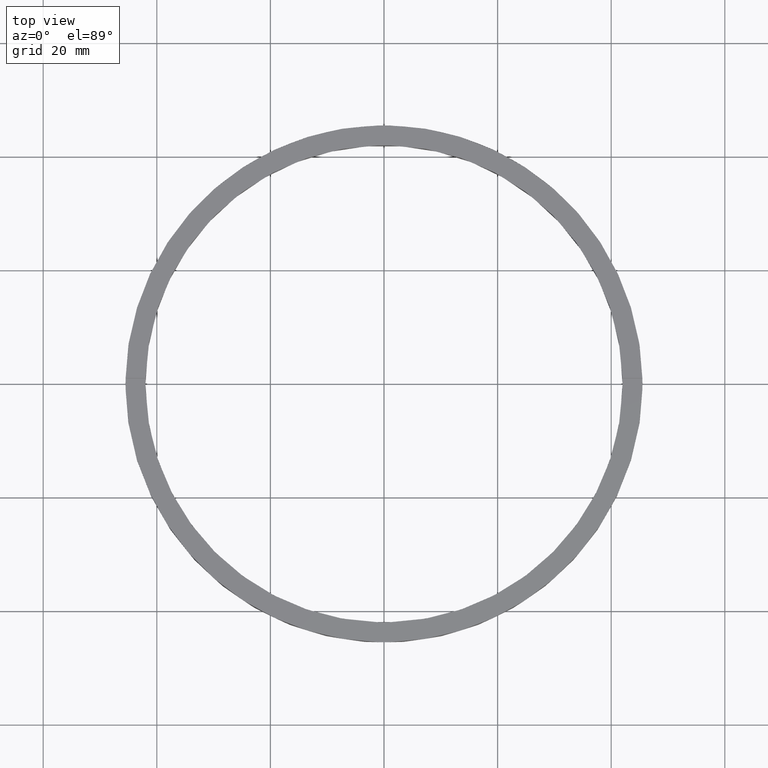
[diagram: clean part render]
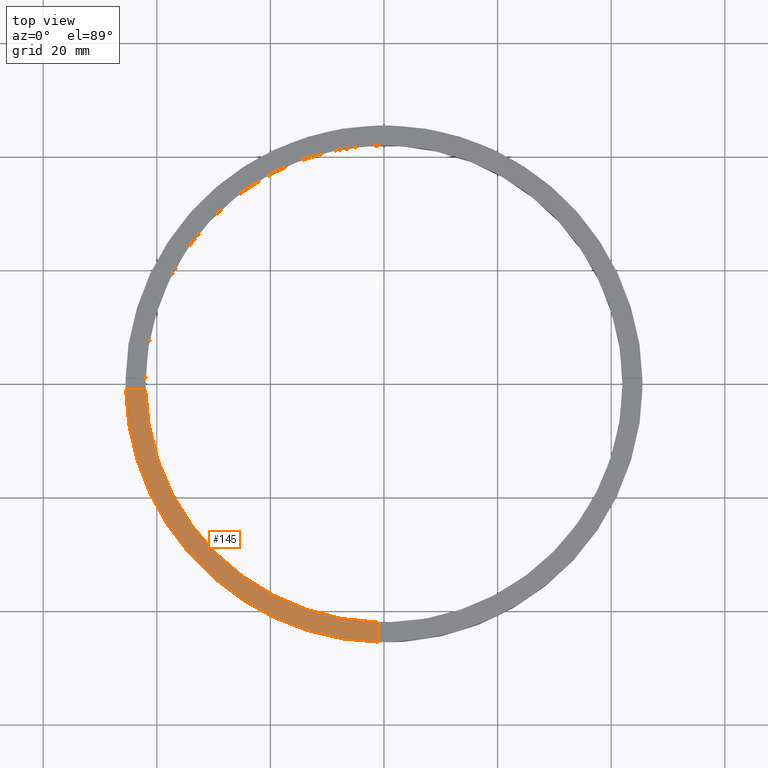
[diagram: same view with one face highlighted and labeled with its STEP entity id]
A machine part, top view. The second image highlights one B-rep face of the part: STEP entity #145.
In plain terms, the highlighted planar face has unit normal (0, 0, 1).
Its self-contained STEP definition (entity closure, byte-faithful):
#23 = EDGE_CURVE ( 'NONE', #650, #669, #362, .T. ) ;
#24 = CARTESIAN_POINT ( 'NONE',  ( 0.000000000000000000, 0.000000000000000000, 4.500000000000000000 ) ) ;
#42 = CARTESIAN_POINT ( 'NONE',  ( -45.48900966167541782, -1.000000000000029976, 4.500000000000000000 ) ) ;
#48 = EDGE_CURVE ( 'NONE', #200, #650, #355, .T. ) ;
#86 = AXIS2_PLACEMENT_3D ( 'NONE', #24, #508, #671 ) ;
#96 = EDGE_CURVE ( 'NONE', #197, #200, #630, .T. ) ;
#110 = ORIENTED_EDGE ( 'NONE', *, *, #23, .F. ) ;
#114 = DIRECTION ( 'NONE',  ( 1.000000000000000000, 0.000000000000000000, 0.000000000000000000 ) ) ;
#124 = ORIENTED_EDGE ( 'NONE', *, *, #48, .F. ) ;
#125 = ORIENTED_EDGE ( 'NONE', *, *, #666, .T. ) ;
#145 = ADVANCED_FACE ( 'NONE', ( #633 ), #225, .T. ) ;
#197 = VERTEX_POINT ( 'NONE', #42 ) ;
#200 = VERTEX_POINT ( 'NONE', #656 ) ;
#209 = ORIENTED_EDGE ( 'NONE', *, *, #96, .F. ) ;
#225 = PLANE ( 'NONE',  #264 ) ;
#230 = DIRECTION ( 'NONE',  ( 1.000000000000000000, 0.000000000000000000, -0.000000000000000000 ) ) ;
#264 = AXIS2_PLACEMENT_3D ( 'NONE', #537, #393, #230 ) ;
#305 = CARTESIAN_POINT ( 'NONE',  ( -1.000000000000159206, -35.50000000000017764, 4.500000000000000000 ) ) ;
#355 = CIRCLE ( 'NONE', #652, 42.00000000000000000 ) ;
#362 = LINE ( 'NONE', #305, #621 ) ;
#393 = DIRECTION ( 'NONE',  ( 0.000000000000000000, 0.000000000000000000, 1.000000000000000000 ) ) ;
#433 = EDGE_LOOP ( 'NONE', ( #110, #124, #209, #125 ) ) ;
#484 = DIRECTION ( 'NONE',  ( 1.301042606982605074E-16, -1.000000000000000000, 0.000000000000000000 ) ) ;
#495 = DIRECTION ( 'NONE',  ( 0.000000000000000000, 0.000000000000000000, 1.000000000000000000 ) ) ;
#508 = DIRECTION ( 'NONE',  ( 0.000000000000000000, 0.000000000000000000, 1.000000000000000000 ) ) ;
#537 = CARTESIAN_POINT ( 'NONE',  ( 0.000000000000000000, 0.000000000000000000, 4.500000000000000000 ) ) ;
#558 = CARTESIAN_POINT ( 'NONE',  ( 0.000000000000000000, 0.000000000000000000, 4.500000000000000000 ) ) ;
#589 = CARTESIAN_POINT ( 'NONE',  ( -35.50000000000018474, -1.000000000000027978, 4.500000000000000000 ) ) ;
#611 = CARTESIAN_POINT ( 'NONE',  ( -1.000000000000158318, -41.98809355043403002, 4.500000000000000000 ) ) ;
#621 = VECTOR ( 'NONE', #484, 1000.000000000000000 ) ;
#630 = LINE ( 'NONE', #589, #632 ) ;
#632 = VECTOR ( 'NONE', #777, 1000.000000000000000 ) ;
#633 = FACE_OUTER_BOUND ( 'NONE', #433, .T. ) ;
#650 = VERTEX_POINT ( 'NONE', #611 ) ;
#652 = AXIS2_PLACEMENT_3D ( 'NONE', #558, #495, #114 ) ;
#656 = CARTESIAN_POINT ( 'NONE',  ( -41.98809355043403713, -1.000000000000029310, 4.500000000000000000 ) ) ;
#666 = EDGE_CURVE ( 'NONE', #197, #669, #701, .T. ) ;
#669 = VERTEX_POINT ( 'NONE', #756 ) ;
#671 = DIRECTION ( 'NONE',  ( 1.000000000000000000, 0.000000000000000000, 0.000000000000000000 ) ) ;
#701 = CIRCLE ( 'NONE', #86, 45.50000000000000000 ) ;
#756 = CARTESIAN_POINT ( 'NONE',  ( -1.000000000000157874, -45.48900966167541782, 4.500000000000000000 ) ) ;
#777 = DIRECTION ( 'NONE',  ( 1.000000000000000000, 2.168404344971008621E-16, -0.000000000000000000 ) ) ;